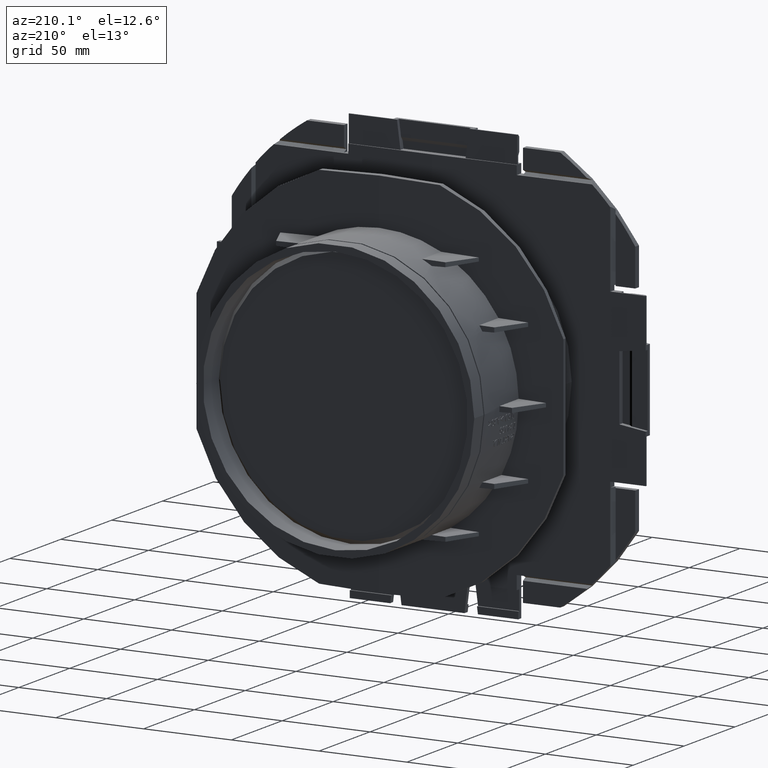
[diagram: clean part render]
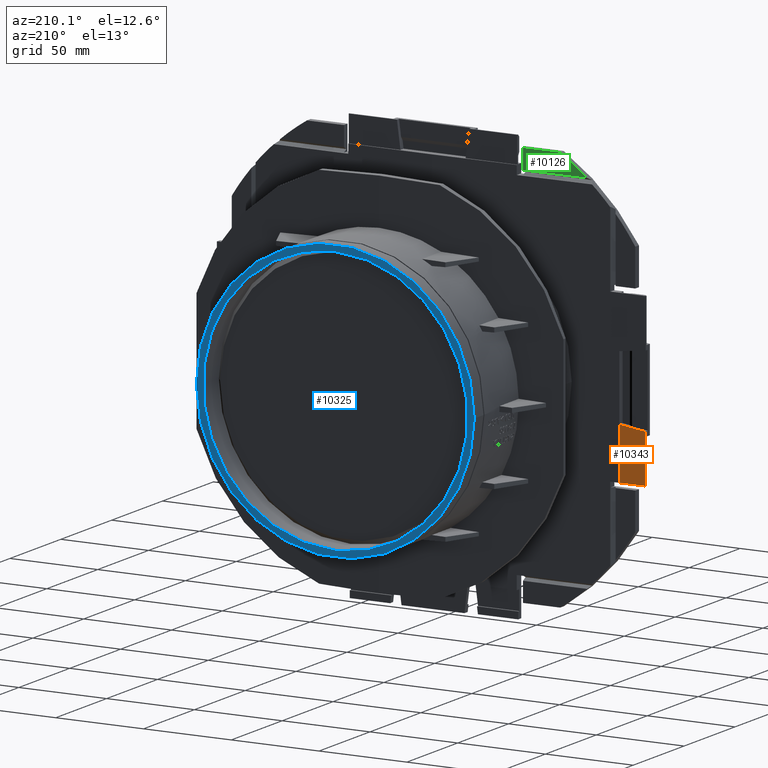
[diagram: same view with three faces highlighted in distinct colors, each labeled with its STEP entity id]
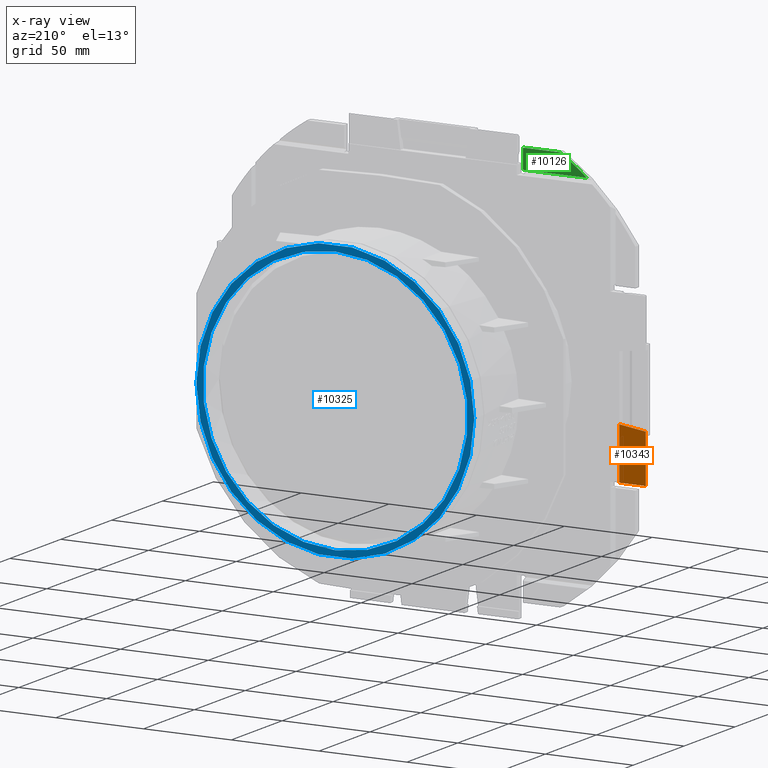
[diagram: x-ray of the same camera — body ghosted, the three highlighted faces saturated]
A machine part, auxiliary view with three faces highlighted in distinct colors.
The next image is the same camera in x-ray (body ghosted, the three faces saturated) — at least one of them is partly hidden behind the body in this view.
Their STEP definitions:

[orange] entity #10343 — the highlighted planar face has unit normal (0, 1, 0).
#913=FACE_OUTER_BOUND('',#1476,.T.);
#1476=EDGE_LOOP('',(#7759,#7760,#7761,#7762));
#2172=LINE('',#17409,#3167);
#2364=LINE('',#17970,#3359);
#2417=LINE('',#18584,#3412);
#2418=LINE('',#18585,#3413);
#3167=VECTOR('',#12448,10.);
#3359=VECTOR('',#12864,10.);
#3412=VECTOR('',#12943,10.);
#3413=VECTOR('',#12944,10.);
#4367=VERTEX_POINT('',#17406);
#4368=VERTEX_POINT('',#17408);
#4542=VERTEX_POINT('',#17967);
#4543=VERTEX_POINT('',#17969);
#5449=EDGE_CURVE('',#4368,#4367,#2172,.T.);
#5703=EDGE_CURVE('',#4542,#4543,#2364,.T.);
#5781=EDGE_CURVE('',#4542,#4368,#2417,.T.);
#5782=EDGE_CURVE('',#4367,#4543,#2418,.T.);
#7759=ORIENTED_EDGE('',*,*,#5781,.T.);
#7760=ORIENTED_EDGE('',*,*,#5449,.T.);
#7761=ORIENTED_EDGE('',*,*,#5782,.T.);
#7762=ORIENTED_EDGE('',*,*,#5703,.F.);
#9361=PLANE('',#11133);
#10343=ADVANCED_FACE('',(#913),#9361,.T.);
#11133=AXIS2_PLACEMENT_3D('',#18583,#12941,#12942);
#12448=DIRECTION('',(0.,0.,-1.));
#12864=DIRECTION('',(0.,0.,-1.));
#12941=DIRECTION('center_axis',(0.,1.,0.));
#12942=DIRECTION('ref_axis',(0.,0.,1.));
#12943=DIRECTION('',(0.991227900682635,0.,0.132163720091018));
#12944=DIRECTION('',(-1.,0.,0.));
#17406=CARTESIAN_POINT('',(-106.2,-84.5,-48.));
#17408=CARTESIAN_POINT('',(-106.2,-84.5,-18.5));
#17409=CARTESIAN_POINT('',(-106.2,-84.5,-24.));
#17967=CARTESIAN_POINT('',(-121.2,-84.5,-20.5));
#17969=CARTESIAN_POINT('',(-121.2,-84.5,-48.));
#17970=CARTESIAN_POINT('',(-121.2,-84.5,-2.53045699223216E-15));
#18583=CARTESIAN_POINT('Origin',(-8.36431586720248E-15,-84.5,-3.48946708783352E-15));
#18584=CARTESIAN_POINT('',(-121.2,-84.5,-20.5));
#18585=CARTESIAN_POINT('',(-57.45,-84.5,-48.));

[blue] entity #10325 — the highlighted planar face has unit normal (0, 1, 0).
#522=FACE_BOUND('',#1458,.T.);
#637=CIRCLE('',#11123,79.15);
#638=CIRCLE('',#11124,79.15);
#639=CIRCLE('',#11125,75.4153169869089);
#895=FACE_OUTER_BOUND('',#1457,.T.);
#1457=EDGE_LOOP('',(#7672,#7673));
#1458=EDGE_LOOP('',(#7674));
#4558=VERTEX_POINT('',#18302);
#4559=VERTEX_POINT('',#18303);
#4560=VERTEX_POINT('',#18306);
#5734=EDGE_CURVE('',#4558,#4559,#637,.T.);
#5735=EDGE_CURVE('',#4559,#4558,#638,.T.);
#5736=EDGE_CURVE('',#4560,#4560,#639,.T.);
#7672=ORIENTED_EDGE('',*,*,#5734,.T.);
#7673=ORIENTED_EDGE('',*,*,#5735,.T.);
#7674=ORIENTED_EDGE('',*,*,#5736,.F.);
#9353=PLANE('',#11122);
#10325=ADVANCED_FACE('',(#895,#522),#9353,.T.);
#11122=AXIS2_PLACEMENT_3D('',#18301,#12883,#12884);
#11123=AXIS2_PLACEMENT_3D('',#18304,#12885,#12886);
#11124=AXIS2_PLACEMENT_3D('',#18305,#12887,#12888);
#11125=AXIS2_PLACEMENT_3D('',#18307,#12889,#12890);
#12883=DIRECTION('center_axis',(0.,1.,0.));
#12884=DIRECTION('ref_axis',(0.,0.,1.));
#12885=DIRECTION('center_axis',(0.,1.,0.));
#12886=DIRECTION('ref_axis',(-1.,0.,0.));
#12887=DIRECTION('center_axis',(0.,1.,0.));
#12888=DIRECTION('ref_axis',(-1.,0.,0.));
#12889=DIRECTION('center_axis',(0.,1.,0.));
#12890=DIRECTION('ref_axis',(0.,0.,1.));
#18301=CARTESIAN_POINT('Origin',(-3.80014548195151E-15,11.5,-1.49619443200695E-15));
#18302=CARTESIAN_POINT('',(79.15,11.5,-9.6930794152513E-15));
#18303=CARTESIAN_POINT('',(-79.15,11.5,-9.6930794152513E-15));
#18304=CARTESIAN_POINT('Origin',(0.,11.5,0.));
#18305=CARTESIAN_POINT('Origin',(0.,11.5,0.));
#18306=CARTESIAN_POINT('',(-9.2357126554701E-15,11.5,-75.4153169869089));
#18307=CARTESIAN_POINT('Origin',(0.,11.5,0.));

[green] entity #10126 — the highlighted planar face has unit normal (0, -1, 0).
#581=CIRCLE('',#10815,135.688907272751);
#696=FACE_OUTER_BOUND('',#1256,.T.);
#1256=EDGE_LOOP('',(#6524,#6525,#6526,#6527));
#1884=LINE('',#15933,#2879);
#1885=LINE('',#15935,#2880);
#1886=LINE('',#15937,#2881);
#2879=VECTOR('',#11772,10.);
#2880=VECTOR('',#11773,10.);
#2881=VECTOR('',#11774,10.);
#4065=VERTEX_POINT('',#15931);
#4066=VERTEX_POINT('',#15932);
#4067=VERTEX_POINT('',#15934);
#4068=VERTEX_POINT('',#15936);
#5040=EDGE_CURVE('',#4065,#4066,#1884,.T.);
#5041=EDGE_CURVE('',#4067,#4065,#1885,.T.);
#5042=EDGE_CURVE('',#4068,#4067,#1886,.T.);
#5043=EDGE_CURVE('',#4066,#4068,#581,.F.);
#6524=ORIENTED_EDGE('',*,*,#5040,.F.);
#6525=ORIENTED_EDGE('',*,*,#5041,.F.);
#6526=ORIENTED_EDGE('',*,*,#5042,.F.);
#6527=ORIENTED_EDGE('',*,*,#5043,.F.);
#9208=PLANE('',#10814);
#10126=ADVANCED_FACE('',(#696),#9208,.F.);
#10814=AXIS2_PLACEMENT_3D('',#15930,#11770,#11771);
#10815=AXIS2_PLACEMENT_3D('',#15938,#11775,#11776);
#11770=DIRECTION('center_axis',(0.,-1.,0.));
#11771=DIRECTION('ref_axis',(-1.22464679914735E-16,0.,1.));
#11772=DIRECTION('',(-1.,0.,-1.22464679914735E-16));
#11773=DIRECTION('',(5.73180816971293E-16,0.,1.));
#11774=DIRECTION('',(1.,0.,1.22464679914735E-16));
#11775=DIRECTION('center_axis',(0.,1.,0.));
#11776=DIRECTION('ref_axis',(-1.,0.,0.));
#15930=CARTESIAN_POINT('Origin',(-67.7206817649481,-85.,106.557660920318));
#15931=CARTESIAN_POINT('',(-51.,-85.,114.938907272751));
#15932=CARTESIAN_POINT('',(-72.1146805568684,-85.,114.938907272751));
#15933=CARTESIAN_POINT('',(2.20578761782384,-85.,114.938907272751));
#15934=CARTESIAN_POINT('',(-51.,-85.,103.77128129211));
#15935=CARTESIAN_POINT('',(-51.,-85.,103.778830460159));
#15936=CARTESIAN_POINT('',(-87.4242571364894,-85.,103.77128129211));
#15937=CARTESIAN_POINT('',(-59.360340882474,-85.,103.77128129211));
#15938=CARTESIAN_POINT('Origin',(0.,-85.,0.));